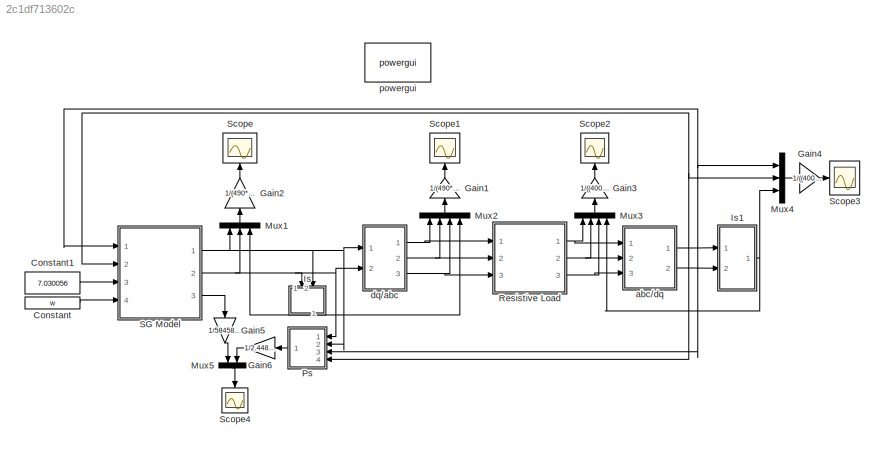
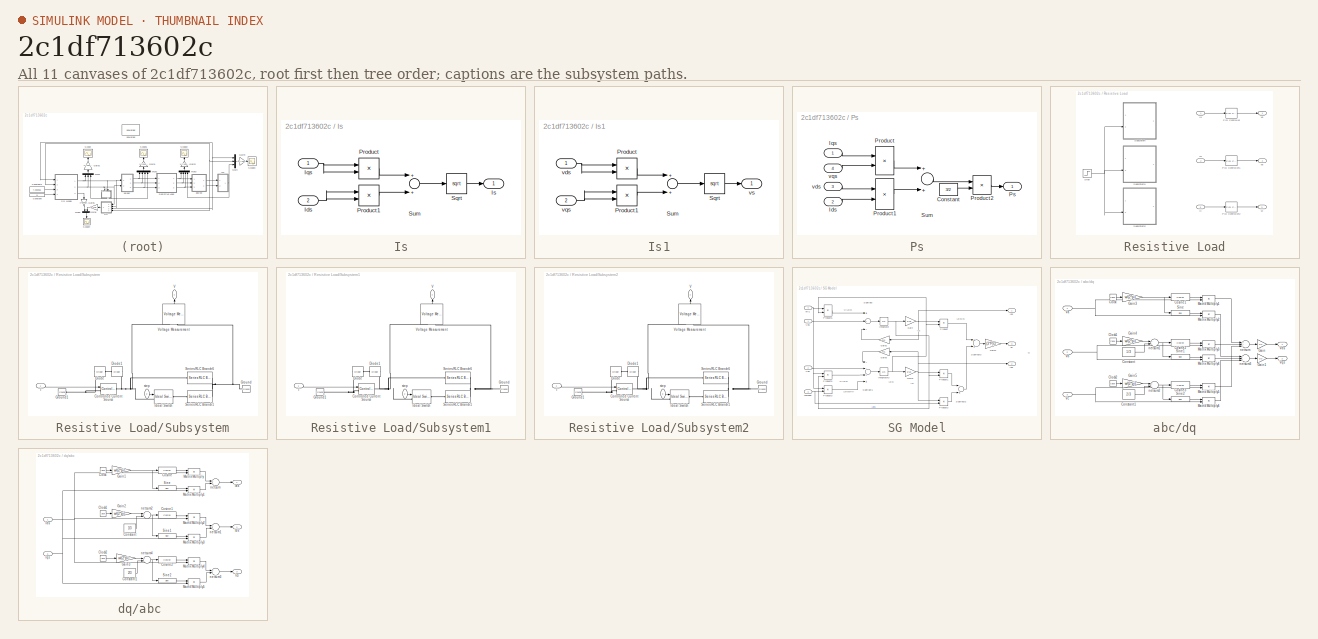
[diagram: thumbnail index - all 11 canvases of the model, root first then tree order]
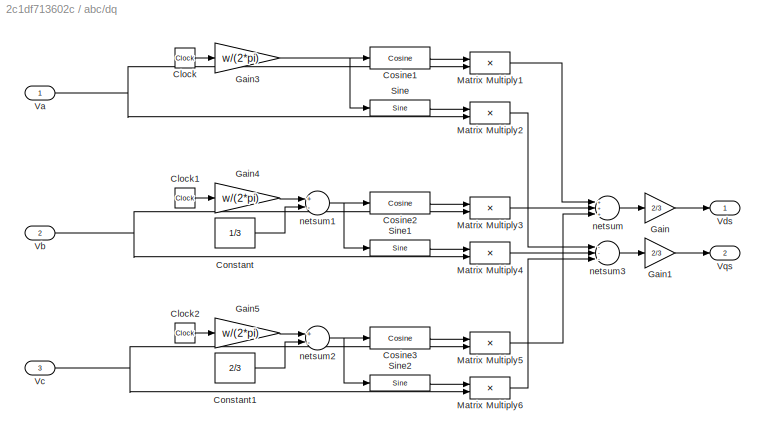
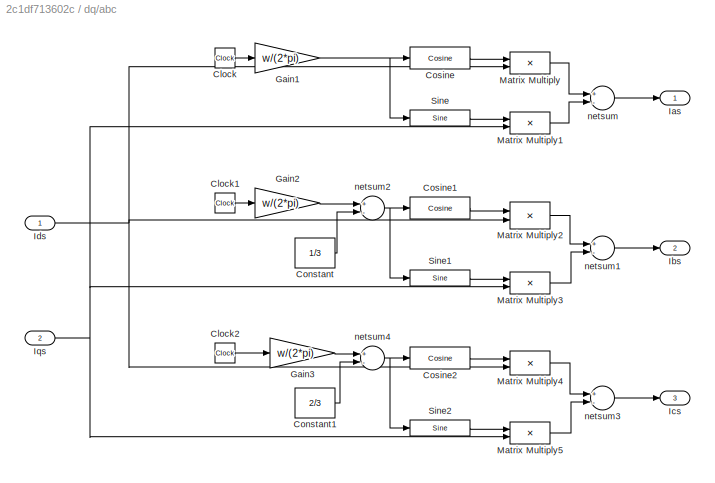
MODEL slx_2c1df713602c
KIND model
BLOCK [Constant] Constant
  Value = w
BLOCK [Constant] Constant1
  Value = 7.030056
BLOCK [Gain] Gain1
  Gain = 1/(490*sqrt(2))
  OutDataTypeStr = Inherit: Inherit via internal rule
  ParamDataTypeStr = Inherit: Inherit via internal rule
  SaturateOnIntegerOverflow = off
BLOCK [Gain] Gain2
  Gain = 1/(490*sqrt(2))
  OutDataTypeStr = Inherit: Inherit via internal rule
  ParamDataTypeStr = Inherit: Inherit via internal rule
  SaturateOnIntegerOverflow = off
BLOCK [Gain] Gain3
  Gain = 1/((4000/sqrt(3))*sqrt(2))
  OutDataTypeStr = Inherit: Inherit via internal rule
  ParamDataTypeStr = Inherit: Inherit via internal rule
  SaturateOnIntegerOverflow = off
BLOCK [Gain] Gain4
  Gain = 1/((4000/sqrt(3))*sqrt(2))
  OutDataTypeStr = Inherit: Inherit via internal rule
  ParamDataTypeStr = Inherit: Inherit via internal rule
  SaturateOnIntegerOverflow = off
BLOCK [Gain] Gain5
  Gain = 1/58458.5
  OutDataTypeStr = Inherit: Inherit via internal rule
  ParamDataTypeStr = Inherit: Inherit via internal rule
  SaturateOnIntegerOverflow = off
BLOCK [Gain] Gain6
  Gain = 1/2.4487e6
  OutDataTypeStr = Inherit: Inherit via internal rule
  ParamDataTypeStr = Inherit: Inherit via internal rule
  SaturateOnIntegerOverflow = off
BLOCK [SubSystem] Is
  FunctionWithSeparateData = off
  MaskHideContents = off
  MinAlgLoopOccurrences = off
  Opaque = off
  Ports = [2, 1]
  PropExecContextOutsideSubsystem = off
  RTWSystemCode = Auto
  RequestExecContextInheritance = off
BLOCK [Inport] Is/Ids
  IconDisplay = Port number
  Port = 2
BLOCK [Inport] Is/Iqs
  IconDisplay = Port number
BLOCK [Outport] Is/Is
  IconDisplay = Port number
BLOCK [Product] Is/Product
  InputSameDT = off
  OutDataTypeStr = Inherit: Inherit via internal rule
  Ports = [2, 1]
  RndMeth = Floor
  SaturateOnIntegerOverflow = off
BLOCK [Product] Is/Product1
  InputSameDT = off
  OutDataTypeStr = Inherit: Inherit via internal rule
  Ports = [2, 1]
  RndMeth = Floor
  SaturateOnIntegerOverflow = off
BLOCK [Sqrt] Is/Sqrt
BLOCK [Sum] Is/Sum
  InputSameDT = off
  OutDataTypeStr = Inherit: Inherit via internal rule
  Ports = [2, 1]
  SaturateOnIntegerOverflow = off
BLOCK [SubSystem] Is1
  FunctionWithSeparateData = off
  MaskHideContents = off
  MinAlgLoopOccurrences = off
  Opaque = off
  Ports = [2, 1]
  PropExecContextOutsideSubsystem = off
  RTWSystemCode = Auto
  RequestExecContextInheritance = off
BLOCK [Product] Is1/Product
  InputSameDT = off
  OutDataTypeStr = Inherit: Inherit via internal rule
  Ports = [2, 1]
  RndMeth = Floor
  SaturateOnIntegerOverflow = off
BLOCK [Product] Is1/Product1
  InputSameDT = off
  OutDataTypeStr = Inherit: Inherit via internal rule
  Ports = [2, 1]
  RndMeth = Floor
  SaturateOnIntegerOverflow = off
BLOCK [Sqrt] Is1/Sqrt
BLOCK [Sum] Is1/Sum
  InputSameDT = off
  OutDataTypeStr = Inherit: Inherit via internal rule
  Ports = [2, 1]
  SaturateOnIntegerOverflow = off
BLOCK [Inport] Is1/vds
  IconDisplay = Port number
BLOCK [Inport] Is1/vqs
  IconDisplay = Port number
  Port = 2
BLOCK [Outport] Is1/vs
  IconDisplay = Port number
BLOCK [Mux] Mux1
  DisplayOption = bar
  Inputs = 3
  Ports = [3, 1]
BLOCK [Mux] Mux2
  DisplayOption = bar
  Ports = [4, 1]
BLOCK [Mux] Mux3
  DisplayOption = bar
  Ports = [4, 1]
BLOCK [Mux] Mux4
  DisplayOption = bar
  Inputs = 3
  Ports = [3, 1]
BLOCK [Mux] Mux5
  DisplayOption = bar
  Inputs = 2
  Ports = [2, 1]
BLOCK [SubSystem] Ps
  FunctionWithSeparateData = off
  MaskHideContents = off
  MinAlgLoopOccurrences = off
  Opaque = off
  Ports = [4, 1]
  PropExecContextOutsideSubsystem = off
  RTWSystemCode = Auto
  RequestExecContextInheritance = off
BLOCK [Constant] Ps/Constant
  Value = 3/2
BLOCK [Inport] Ps/Ids
  IconDisplay = Port number
  Port = 2
BLOCK [Inport] Ps/Iqs
  IconDisplay = Port number
BLOCK [Product] Ps/Product
  InputSameDT = off
  OutDataTypeStr = Inherit: Inherit via internal rule
  Ports = [2, 1]
  RndMeth = Floor
  SaturateOnIntegerOverflow = off
BLOCK [Product] Ps/Product1
  InputSameDT = off
  OutDataTypeStr = Inherit: Inherit via internal rule
  Ports = [2, 1]
  RndMeth = Floor
  SaturateOnIntegerOverflow = off
BLOCK [Product] Ps/Product2
  InputSameDT = off
  OutDataTypeStr = Inherit: Inherit via internal rule
  Ports = [2, 1]
  RndMeth = Floor
  SaturateOnIntegerOverflow = off
BLOCK [Outport] Ps/Ps
  IconDisplay = Port number
BLOCK [Sum] Ps/Sum
  InputSameDT = off
  OutDataTypeStr = Inherit: Inherit via internal rule
  Ports = [2, 1]
  SaturateOnIntegerOverflow = off
BLOCK [Inport] Ps/vds
  IconDisplay = Port number
  Port = 3
BLOCK [Inport] Ps/vqs
  IconDisplay = Port number
  Port = 4
BLOCK [SubSystem] Resistive Load
  FunctionWithSeparateData = off
  MaskHideContents = off
  MinAlgLoopOccurrences = off
  Opaque = off
  Ports = [3, 3]
  PropExecContextOutsideSubsystem = off
  RTWSystemCode = Auto
  RequestExecContextInheritance = off
BLOCK [Inport] Resistive Load/Ia
  IconDisplay = Port number
BLOCK [Inport] Resistive Load/Ib
  IconDisplay = Port number
  Port = 2
BLOCK [Inport] Resistive Load/Ic
  IconDisplay = Port number
  Port = 3
BLOCK [Reference] Resistive Load/PID Controller  REF=simulink/Continuous/PID Controller
  AntiWindupMode = none
  Controller = PID
  D = LL
  DOutDataTypeStr = Inherit: Inherit via internal rule
  DOutMax = []
  DOutMin = []
  DParamDataTypeStr = Inherit: Inherit via internal rule
  DParamMax = []
  DParamMin = []
  ExternalReset = none
  FilterContinuousStateAttributes = ''
  FilterMethod = Forward Euler
  FilterOutDataTypeStr = Inherit: Inherit via internal rule
  FilterOutMax = []
  FilterOutMin = []
  FilterRTWStateStorageClass = Auto
  FilterStateMustResolveToSignalObject = off
  Form = Parallel
  I = 0
  IOutDataTypeStr = Inherit: Inherit via internal rule
  IOutMax = []
  IOutMin = []
  IParamDataTypeStr = Inherit: Inherit via internal rule
  IParamMax = []
  IParamMin = []
  IgnoreLimit = off
  InitialConditionForFilter = 0
  InitialConditionForIntegrator = 0
  InitialConditionSource = internal
  IntegratorContinuousStateAttributes = ''
  IntegratorMethod = Forward Euler
  IntegratorOutDataTypeStr = Inherit: Inherit via internal rule
  IntegratorOutMax = []
  IntegratorOutMin = []
  IntegratorRTWStateStorageClass = Auto
  IntegratorStateMustResolveToSignalObject = off
  Kb = 1
  KbOutDataTypeStr = Inherit: Inherit via internal rule
  KbOutMax = []
  KbOutMin = []
  KbParamDataTypeStr = Inherit: Inherit via internal rule
  KbParamMax = []
  KbParamMin = []
  Kt = 1
  KtOutDataTypeStr = Inherit: Inherit via internal rule
  KtOutMax = []
  KtOutMin = []
  KtParamDataTypeStr = Inherit: Inherit via internal rule
  KtParamMax = []
  KtParamMin = []
  LimitOutput = off
  LinearizeAsGain = on
  LockScale = off
  LowerSaturationLimit = -inf
  N = N
  NOutDataTypeStr = Inherit: Inherit via internal rule
  NOutMax = []
  NOutMin = []
  NParamDataTypeStr = Inherit: Inherit via internal rule
  NParamMax = []
  NParamMin = []
  P = RL
  POutDataTypeStr = Inherit: Inherit via internal rule
  POutMax = []
  POutMin = []
  PParamDataTypeStr = Inherit: Inherit via internal rule
  PParamMax = []
  PParamMin = []
  Ports = [1, 1]
  RndMeth = Floor
  SampleTime = 1
  SaturateOnIntegerOverflow = off
  SaturationOutDataTypeStr = Inherit: Same as input
  SaturationOutMax = []
  SaturationOutMin = []
  SourceBlock = simulink/Continuous/PID Controller
  SourceType = PID 1dof
  SumAccumDataTypeStr = Inherit: Inherit via internal rule
  SumDAccumDataTypeStr = Inherit: Inherit via internal rule
  SumDOutDataTypeStr = Inherit: Inherit via internal rule
  SumDOutMax = []
  SumDOutMin = []
  SumI1AccumDataTypeStr = Inherit: Inherit via internal rule
  SumI1OutDataTypeStr = Inherit: Inherit via internal rule
  SumI1OutMax = []
  SumI1OutMin = []
  SumI2AccumDataTypeStr = Inherit: Inherit via internal rule
  SumI2OutDataTypeStr = Inherit: Inherit via internal rule
  SumI2OutMax = []
  SumI2OutMin = []
  SumI3AccumDataTypeStr = Inherit: Inherit via internal rule
  SumI3OutDataTypeStr = Inherit: Inherit via internal rule
  SumI3OutMax = []
  SumI3OutMin = []
  SumOutDataTypeStr = Inherit: Inherit via internal rule
  SumOutMax = []
  SumOutMin = []
  TimeDomain = Continuous-time
  TrackingMode = off
  UpperSaturationLimit = inf
  ZeroCross = on
BLOCK [Reference] Resistive Load/PID Controller1  REF=simulink/Continuous/PID Controller
  AntiWindupMode = none
  Controller = PID
  D = LL
  DOutDataTypeStr = Inherit: Inherit via internal rule
  DOutMax = []
  DOutMin = []
  DParamDataTypeStr = Inherit: Inherit via internal rule
  DParamMax = []
  DParamMin = []
  ExternalReset = none
  FilterContinuousStateAttributes = ''
  FilterMethod = Forward Euler
  FilterOutDataTypeStr = Inherit: Inherit via internal rule
  FilterOutMax = []
  FilterOutMin = []
  FilterRTWStateStorageClass = Auto
  FilterStateMustResolveToSignalObject = off
  Form = Parallel
  I = 0
  IOutDataTypeStr = Inherit: Inherit via internal rule
  IOutMax = []
  IOutMin = []
  IParamDataTypeStr = Inherit: Inherit via internal rule
  IParamMax = []
  IParamMin = []
  IgnoreLimit = off
  InitialConditionForFilter = 0
  InitialConditionForIntegrator = 0
  InitialConditionSource = internal
  IntegratorContinuousStateAttributes = ''
  IntegratorMethod = Forward Euler
  IntegratorOutDataTypeStr = Inherit: Inherit via internal rule
  IntegratorOutMax = []
  IntegratorOutMin = []
  IntegratorRTWStateStorageClass = Auto
  IntegratorStateMustResolveToSignalObject = off
  Kb = 1
  KbOutDataTypeStr = Inherit: Inherit via internal rule
  KbOutMax = []
  KbOutMin = []
  KbParamDataTypeStr = Inherit: Inherit via internal rule
  KbParamMax = []
  KbParamMin = []
  Kt = 1
  KtOutDataTypeStr = Inherit: Inherit via internal rule
  KtOutMax = []
  KtOutMin = []
  KtParamDataTypeStr = Inherit: Inherit via internal rule
  KtParamMax = []
  KtParamMin = []
  LimitOutput = off
  LinearizeAsGain = on
  LockScale = off
  LowerSaturationLimit = -inf
  N = N
  NOutDataTypeStr = Inherit: Inherit via internal rule
  NOutMax = []
  NOutMin = []
  NParamDataTypeStr = Inherit: Inherit via internal rule
  NParamMax = []
  NParamMin = []
  P = RL
  POutDataTypeStr = Inherit: Inherit via internal rule
  POutMax = []
  POutMin = []
  PParamDataTypeStr = Inherit: Inherit via internal rule
  PParamMax = []
  PParamMin = []
  Ports = [1, 1]
  RndMeth = Floor
  SampleTime = 1
  SaturateOnIntegerOverflow = off
  SaturationOutDataTypeStr = Inherit: Same as input
  SaturationOutMax = []
  SaturationOutMin = []
  SourceBlock = simulink/Continuous/PID Controller
  SourceType = PID 1dof
  SumAccumDataTypeStr = Inherit: Inherit via internal rule
  SumDAccumDataTypeStr = Inherit: Inherit via internal rule
  SumDOutDataTypeStr = Inherit: Inherit via internal rule
  SumDOutMax = []
  SumDOutMin = []
  SumI1AccumDataTypeStr = Inherit: Inherit via internal rule
  SumI1OutDataTypeStr = Inherit: Inherit via internal rule
  SumI1OutMax = []
  SumI1OutMin = []
  SumI2AccumDataTypeStr = Inherit: Inherit via internal rule
  SumI2OutDataTypeStr = Inherit: Inherit via internal rule
  SumI2OutMax = []
  SumI2OutMin = []
  SumI3AccumDataTypeStr = Inherit: Inherit via internal rule
  SumI3OutDataTypeStr = Inherit: Inherit via internal rule
  SumI3OutMax = []
  SumI3OutMin = []
  SumOutDataTypeStr = Inherit: Inherit via internal rule
  SumOutMax = []
  SumOutMin = []
  TimeDomain = Continuous-time
  TrackingMode = off
  UpperSaturationLimit = inf
  ZeroCross = on
BLOCK [Reference] Resistive Load/PID Controller2  REF=simulink/Continuous/PID Controller
  AntiWindupMode = none
  Controller = PID
  D = LL
  DOutDataTypeStr = Inherit: Inherit via internal rule
  DOutMax = []
  DOutMin = []
  DParamDataTypeStr = Inherit: Inherit via internal rule
  DParamMax = []
  DParamMin = []
  ExternalReset = none
  FilterContinuousStateAttributes = ''
  FilterMethod = Forward Euler
  FilterOutDataTypeStr = Inherit: Inherit via internal rule
  FilterOutMax = []
  FilterOutMin = []
  FilterRTWStateStorageClass = Auto
  FilterStateMustResolveToSignalObject = off
  Form = Parallel
  I = 0
  IOutDataTypeStr = Inherit: Inherit via internal rule
  IOutMax = []
  IOutMin = []
  IParamDataTypeStr = Inherit: Inherit via internal rule
  IParamMax = []
  IParamMin = []
  IgnoreLimit = off
  InitialConditionForFilter = 0
  InitialConditionForIntegrator = 0
  InitialConditionSource = internal
  IntegratorContinuousStateAttributes = ''
  IntegratorMethod = Forward Euler
  IntegratorOutDataTypeStr = Inherit: Inherit via internal rule
  IntegratorOutMax = []
  IntegratorOutMin = []
  IntegratorRTWStateStorageClass = Auto
  IntegratorStateMustResolveToSignalObject = off
  Kb = 1
  KbOutDataTypeStr = Inherit: Inherit via internal rule
  KbOutMax = []
  KbOutMin = []
  KbParamDataTypeStr = Inherit: Inherit via internal rule
  KbParamMax = []
  KbParamMin = []
  Kt = 1
  KtOutDataTypeStr = Inherit: Inherit via internal rule
  KtOutMax = []
  KtOutMin = []
  KtParamDataTypeStr = Inherit: Inherit via internal rule
  KtParamMax = []
  KtParamMin = []
  LimitOutput = off
  LinearizeAsGain = on
  LockScale = off
  LowerSaturationLimit = -inf
  N = N
  NOutDataTypeStr = Inherit: Inherit via internal rule
  NOutMax = []
  NOutMin = []
  NParamDataTypeStr = Inherit: Inherit via internal rule
  NParamMax = []
  NParamMin = []
  P = RL
  POutDataTypeStr = Inherit: Inherit via internal rule
  POutMax = []
  POutMin = []
  PParamDataTypeStr = Inherit: Inherit via internal rule
  PParamMax = []
  PParamMin = []
  Ports = [1, 1]
  RndMeth = Floor
  SampleTime = 1
  SaturateOnIntegerOverflow = off
  SaturationOutDataTypeStr = Inherit: Same as input
  SaturationOutMax = []
  SaturationOutMin = []
  SourceBlock = simulink/Continuous/PID Controller
  SourceType = PID 1dof
  SumAccumDataTypeStr = Inherit: Inherit via internal rule
  SumDAccumDataTypeStr = Inherit: Inherit via internal rule
  SumDOutDataTypeStr = Inherit: Inherit via internal rule
  SumDOutMax = []
  SumDOutMin = []
  SumI1AccumDataTypeStr = Inherit: Inherit via internal rule
  SumI1OutDataTypeStr = Inherit: Inherit via internal rule
  SumI1OutMax = []
  SumI1OutMin = []
  SumI2AccumDataTypeStr = Inherit: Inherit via internal rule
  SumI2OutDataTypeStr = Inherit: Inherit via internal rule
  SumI2OutMax = []
  SumI2OutMin = []
  SumI3AccumDataTypeStr = Inherit: Inherit via internal rule
  SumI3OutDataTypeStr = Inherit: Inherit via internal rule
  SumI3OutMax = []
  SumI3OutMin = []
  SumOutDataTypeStr = Inherit: Inherit via internal rule
  SumOutMax = []
  SumOutMin = []
  TimeDomain = Continuous-time
  TrackingMode = off
  UpperSaturationLimit = inf
  ZeroCross = on
BLOCK [Step] Resistive Load/Step
  SampleTime = 0
  Time = 0.05
BLOCK [SubSystem] Resistive Load/Subsystem
  FunctionWithSeparateData = off
  MaskHideContents = off
  MinAlgLoopOccurrences = off
  Opaque = off
  Ports = [2, 1]
  PropExecContextOutsideSubsystem = off
  RTWSystemCode = Auto
  RequestExecContextInheritance = off
BLOCK [Reference] Resistive Load/Subsystem/Controlled Current Source  REF=powerlib/Electrical
Sources/Controlled Current Source
  Amplitude = is
  Frequency = f
  Initialize = off
  Measurements = None
  Phase = 90
  Ports = [1, 0, 0, 0, 0, 1, 1]
  SourceBlock = powerlib/Electrical\nSources/Controlled Current Source
  SourceType = Controlled Current Source
  Source_Type = AC
BLOCK [Reference] Resistive Load/Subsystem/Diode  REF=powerlib/Power
Electronics/Diode
  Cs = inf
  IC = 0
  Lon = 0
  Measurements = off
  Ports = [0, 0, 0, 0, 0, 1, 1]
  Ron = 0.001
  Rs = Rsnubber
  SourceBlock = powerlib/Power\nElectronics/Diode
  SourceType = Diode
  UseSnubber = off
  Vf = 0.8
BLOCK [Reference] Resistive Load/Subsystem/Diode1  REF=powerlib/Power
Electronics/Diode
  Cs = inf
  IC = 0
  Lon = 0
  Measurements = off
  Ports = [0, 0, 0, 0, 0, 1, 1]
  Ron = 0.001
  Rs = Rsnubber
  SourceBlock = powerlib/Power\nElectronics/Diode
  SourceType = Diode
  UseSnubber = off
  Vf = 0.8
BLOCK [Reference] Resistive Load/Subsystem/Ground  REF=powerlib/Elements/Ground
  LConnTagsString = a
  Ports = [0, 0, 0, 0, 0, 1]
  SourceBlock = powerlib/Elements/Ground
  SourceType = Ground
BLOCK [Reference] Resistive Load/Subsystem/Ground1  REF=powerlib/Elements/Ground
  LConnTagsString = a
  Ports = [0, 0, 0, 0, 0, 1]
  SourceBlock = powerlib/Elements/Ground
  SourceType = Ground
BLOCK [Inport] Resistive Load/Subsystem/I
  IconDisplay = Port number
BLOCK [Reference] Resistive Load/Subsystem/Ideal Switch  REF=powerlib/Power
Electronics/Ideal Switch
  Cs = inf
  IC = 0
  Lon = 0
  Measurements = off
  Ports = [1, 0, 0, 0, 0, 1, 1]
  Ron = 0.001
  Rs = inf
  SourceBlock = powerlib/Power\nElectronics/Ideal Switch
  SourceType = Ideal Switch
BLOCK [Reference] Resistive Load/Subsystem/Series RLC Branch1  REF=powerlib/Elements/Series RLC Branch
  BranchType = RL
  Capacitance = 0
  Inductance = LL
  InitialCurrent = 0
  InitialVoltage = 0
  LConnTagsString = __new0
  Measurements = None
  Ports = [0, 0, 0, 0, 0, 1, 1]
  RConnTagsString = __new0
  Resistance = RL
  SetiL0 = off
  Setx0 = off
  SourceBlock = powerlib/Elements/Series RLC Branch
  SourceType = Series RLC Branch
BLOCK [Reference] Resistive Load/Subsystem/Series RLC Branch6  REF=powerlib/Elements/Series RLC Branch
  BranchType = RL
  Capacitance = 0
  Inductance = LL
  InitialCurrent = is
  InitialVoltage = 0
  LConnTagsString = __new0
  Measurements = None
  Ports = [0, 0, 0, 0, 0, 1, 1]
  RConnTagsString = __new0
  Resistance = RL
  SetiL0 = on
  Setx0 = off
  SourceBlock = powerlib/Elements/Series RLC Branch
  SourceType = Series RLC Branch
BLOCK [Outport] Resistive Load/Subsystem/V
  IconDisplay = Port number
BLOCK [Reference] Resistive Load/Subsystem/Voltage Measurement  REF=powerlib/Measurements/Voltage Measurement
  OutputType = Complex
  PSBequivalent = 0
  PhasorSimulation = off
  Ports = [0, 1, 0, 0, 0, 2]
  SourceBlock = powerlib/Measurements/Voltage Measurement
  SourceType = Voltage Measurement
  UserDataPersistent = on
BLOCK [Inport] Resistive Load/Subsystem/step
  IconDisplay = Port number
  Port = 2
BLOCK [SubSystem] Resistive Load/Subsystem1
  FunctionWithSeparateData = off
  MaskHideContents = off
  MinAlgLoopOccurrences = off
  Opaque = off
  Ports = [2, 1]
  PropExecContextOutsideSubsystem = off
  RTWSystemCode = Auto
  RequestExecContextInheritance = off
BLOCK [Reference] Resistive Load/Subsystem1/Controlled Current Source  REF=powerlib/Electrical
Sources/Controlled Current Source
  Amplitude = is
  Frequency = f
  Initialize = off
  Measurements = None
  Phase = 90
  Ports = [1, 0, 0, 0, 0, 1, 1]
  SourceBlock = powerlib/Electrical\nSources/Controlled Current Source
  SourceType = Controlled Current Source
  Source_Type = AC
BLOCK [Reference] Resistive Load/Subsystem1/Diode  REF=powerlib/Power
Electronics/Diode
  Cs = inf
  IC = 0
  Lon = 0
  Measurements = off
  Ports = [0, 0, 0, 0, 0, 1, 1]
  Ron = 0.001
  Rs = Rsnubber
  SourceBlock = powerlib/Power\nElectronics/Diode
  SourceType = Diode
  UseSnubber = off
  Vf = 0.8
BLOCK [Reference] Resistive Load/Subsystem1/Diode1  REF=powerlib/Power
Electronics/Diode
  Cs = inf
  IC = 0
  Lon = 0
  Measurements = off
  Ports = [0, 0, 0, 0, 0, 1, 1]
  Ron = 0.001
  Rs = Rsnubber
  SourceBlock = powerlib/Power\nElectronics/Diode
  SourceType = Diode
  UseSnubber = off
  Vf = 0.8
BLOCK [Reference] Resistive Load/Subsystem1/Ground  REF=powerlib/Elements/Ground
  LConnTagsString = a
  Ports = [0, 0, 0, 0, 0, 1]
  SourceBlock = powerlib/Elements/Ground
  SourceType = Ground
BLOCK [Reference] Resistive Load/Subsystem1/Ground1  REF=powerlib/Elements/Ground
  LConnTagsString = a
  Ports = [0, 0, 0, 0, 0, 1]
  SourceBlock = powerlib/Elements/Ground
  SourceType = Ground
BLOCK [Inport] Resistive Load/Subsystem1/I
  IconDisplay = Port number
BLOCK [Reference] Resistive Load/Subsystem1/Ideal Switch  REF=powerlib/Power
Electronics/Ideal Switch
  Cs = inf
  IC = 0
  Lon = 0
  Measurements = off
  Ports = [1, 0, 0, 0, 0, 1, 1]
  Ron = 0.001
  Rs = inf
  SourceBlock = powerlib/Power\nElectronics/Ideal Switch
  SourceType = Ideal Switch
BLOCK [Reference] Resistive Load/Subsystem1/Series RLC Branch1  REF=powerlib/Elements/Series RLC Branch
  BranchType = RL
  Capacitance = 0
  Inductance = LL
  InitialCurrent = 0
  InitialVoltage = 0
  LConnTagsString = __new0
  Measurements = None
  Ports = [0, 0, 0, 0, 0, 1, 1]
  RConnTagsString = __new0
  Resistance = RL
  SetiL0 = off
  Setx0 = off
  SourceBlock = powerlib/Elements/Series RLC Branch
  SourceType = Series RLC Branch
BLOCK [Reference] Resistive Load/Subsystem1/Series RLC Branch6  REF=powerlib/Elements/Series RLC Branch
  BranchType = RL
  Capacitance = 0
  Inductance = LL
  InitialCurrent = is
  InitialVoltage = 0
  LConnTagsString = __new0
  Measurements = None
  Ports = [0, 0, 0, 0, 0, 1, 1]
  RConnTagsString = __new0
  Resistance = RL
  SetiL0 = on
  Setx0 = off
  SourceBlock = powerlib/Elements/Series RLC Branch
  SourceType = Series RLC Branch
BLOCK [Outport] Resistive Load/Subsystem1/V
  IconDisplay = Port number
BLOCK [Reference] Resistive Load/Subsystem1/Voltage Measurement  REF=powerlib/Measurements/Voltage Measurement
  OutputType = Complex
  PSBequivalent = 0
  PhasorSimulation = off
  Ports = [0, 1, 0, 0, 0, 2]
  SourceBlock = powerlib/Measurements/Voltage Measurement
  SourceType = Voltage Measurement
  UserDataPersistent = on
BLOCK [Inport] Resistive Load/Subsystem1/step
  IconDisplay = Port number
  Port = 2
BLOCK [SubSystem] Resistive Load/Subsystem2
  FunctionWithSeparateData = off
  MaskHideContents = off
  MinAlgLoopOccurrences = off
  Opaque = off
  Ports = [2, 1]
  PropExecContextOutsideSubsystem = off
  RTWSystemCode = Auto
  RequestExecContextInheritance = off
BLOCK [Reference] Resistive Load/Subsystem2/Controlled Current Source  REF=powerlib/Electrical
Sources/Controlled Current Source
  Amplitude = is
  Frequency = f
  Initialize = off
  Measurements = None
  Phase = 90
  Ports = [1, 0, 0, 0, 0, 1, 1]
  SourceBlock = powerlib/Electrical\nSources/Controlled Current Source
  SourceType = Controlled Current Source
  Source_Type = AC
BLOCK [Reference] Resistive Load/Subsystem2/Diode  REF=powerlib/Power
Electronics/Diode
  Cs = inf
  IC = 0
  Lon = 0
  Measurements = off
  Ports = [0, 0, 0, 0, 0, 1, 1]
  Ron = 0.001
  Rs = Rsnubber
  SourceBlock = powerlib/Power\nElectronics/Diode
  SourceType = Diode
  UseSnubber = off
  Vf = 0.8
BLOCK [Reference] Resistive Load/Subsystem2/Diode1  REF=powerlib/Power
Electronics/Diode
  Cs = inf
  IC = 0
  Lon = 0
  Measurements = off
  Ports = [0, 0, 0, 0, 0, 1, 1]
  Ron = 0.001
  Rs = Rsnubber
  SourceBlock = powerlib/Power\nElectronics/Diode
  SourceType = Diode
  UseSnubber = off
  Vf = 0.8
BLOCK [Reference] Resistive Load/Subsystem2/Ground  REF=powerlib/Elements/Ground
  LConnTagsString = a
  Ports = [0, 0, 0, 0, 0, 1]
  SourceBlock = powerlib/Elements/Ground
  SourceType = Ground
BLOCK [Reference] Resistive Load/Subsystem2/Ground1  REF=powerlib/Elements/Ground
  LConnTagsString = a
  Ports = [0, 0, 0, 0, 0, 1]
  SourceBlock = powerlib/Elements/Ground
  SourceType = Ground
BLOCK [Inport] Resistive Load/Subsystem2/I
  IconDisplay = Port number
BLOCK [Reference] Resistive Load/Subsystem2/Ideal Switch  REF=powerlib/Power
Electronics/Ideal Switch
  Cs = inf
  IC = 0
  Lon = 0
  Measurements = off
  Ports = [1, 0, 0, 0, 0, 1, 1]
  Ron = 0.001
  Rs = inf
  SourceBlock = powerlib/Power\nElectronics/Ideal Switch
  SourceType = Ideal Switch
BLOCK [Reference] Resistive Load/Subsystem2/Series RLC Branch1  REF=powerlib/Elements/Series RLC Branch
  BranchType = RL
  Capacitance = 0
  Inductance = LL
  InitialCurrent = 0
  InitialVoltage = 0
  LConnTagsString = __new0
  Measurements = None
  Ports = [0, 0, 0, 0, 0, 1, 1]
  RConnTagsString = __new0
  Resistance = RL
  SetiL0 = off
  Setx0 = off
  SourceBlock = powerlib/Elements/Series RLC Branch
  SourceType = Series RLC Branch
BLOCK [Reference] Resistive Load/Subsystem2/Series RLC Branch6  REF=powerlib/Elements/Series RLC Branch
  BranchType = RL
  Capacitance = 0
  Inductance = LL
  InitialCurrent = is
  InitialVoltage = 0
  LConnTagsString = __new0
  Measurements = None
  Ports = [0, 0, 0, 0, 0, 1, 1]
  RConnTagsString = __new0
  Resistance = RL
  SetiL0 = on
  Setx0 = off
  SourceBlock = powerlib/Elements/Series RLC Branch
  SourceType = Series RLC Branch
BLOCK [Outport] Resistive Load/Subsystem2/V
  IconDisplay = Port number
BLOCK [Reference] Resistive Load/Subsystem2/Voltage Measurement  REF=powerlib/Measurements/Voltage Measurement
  OutputType = Complex
  PSBequivalent = 0
  PhasorSimulation = off
  Ports = [0, 1, 0, 0, 0, 2]
  SourceBlock = powerlib/Measurements/Voltage Measurement
  SourceType = Voltage Measurement
  UserDataPersistent = on
BLOCK [Inport] Resistive Load/Subsystem2/step
  IconDisplay = Port number
  Port = 2
BLOCK [Outport] Resistive Load/va
  IconDisplay = Port number
BLOCK [Outport] Resistive Load/vb
  IconDisplay = Port number
  Port = 2
BLOCK [Outport] Resistive Load/vc
  IconDisplay = Port number
  Port = 3
BLOCK [SubSystem] SG Model
  FunctionWithSeparateData = off
  MaskHideContents = off
  MinAlgLoopOccurrences = off
  Opaque = off
  Ports = [4, 3]
  PropExecContextOutsideSubsystem = off
  RTWSystemCode = Auto
  RequestExecContextInheritance = off
BLOCK [Gain] SG Model/Gain
  Gain = 1/Ld
  OutDataTypeStr = Inherit: Inherit via internal rule
  ParamDataTypeStr = Inherit: Inherit via internal rule
  SaturateOnIntegerOverflow = off
BLOCK [Gain] SG Model/Gain1
  Gain = 1/Lq
  OutDataTypeStr = Inherit: Inherit via internal rule
  ParamDataTypeStr = Inherit: Inherit via internal rule
  SaturateOnIntegerOverflow = off
BLOCK [Gain] SG Model/Gain2
  Gain = Rs
  OutDataTypeStr = Inherit: Inherit via internal rule
  ParamDataTypeStr = Inherit: Inherit via internal rule
  SaturateOnIntegerOverflow = off
BLOCK [Gain] SG Model/Gain3
  Gain = Rs
  OutDataTypeStr = Inherit: Inherit via internal rule
  ParamDataTypeStr = Inherit: Inherit via internal rule
  SaturateOnIntegerOverflow = off
BLOCK [Gain] SG Model/Gain4
  Gain = (3*P)/2
  OutDataTypeStr = Inherit: Inherit via internal rule
  ParamDataTypeStr = Inherit: Inherit via internal rule
  SaturateOnIntegerOverflow = off
BLOCK [Outport] SG Model/Ids
  IconDisplay = Port number
BLOCK [Integrator] SG Model/Integrator
  InitialCondition = ids*Ld
  Ports = [1, 1]
BLOCK [Integrator] SG Model/Integrator3
  InitialCondition = iqs*Lq
  Ports = [1, 1]
BLOCK [Inport] SG Model/Lambda
  IconDisplay = Port number
  Port = 3
BLOCK [Product] SG Model/Product
  InputSameDT = off
  OutDataTypeStr = Inherit: Inherit via internal rule
  Ports = [2, 1]
  RndMeth = Floor
  SaturateOnIntegerOverflow = off
BLOCK [Product] SG Model/Product1
  InputSameDT = off
  OutDataTypeStr = Inherit: Inherit via internal rule
  Ports = [2, 1]
  RndMeth = Floor
  SaturateOnIntegerOverflow = off
BLOCK [Product] SG Model/Product2
  InputSameDT = off
  OutDataTypeStr = Inherit: Inherit via internal rule
  Ports = [2, 1]
  RndMeth = Floor
  SaturateOnIntegerOverflow = off
BLOCK [Product] SG Model/Product3
  InputSameDT = off
  OutDataTypeStr = Inherit: Inherit via internal rule
  Ports = [2, 1]
  RndMeth = Floor
  SaturateOnIntegerOverflow = off
BLOCK [Product] SG Model/Product5
  InputSameDT = off
  OutDataTypeStr = Inherit: Inherit via internal rule
  Ports = [2, 1]
  RndMeth = Floor
  SaturateOnIntegerOverflow = off
BLOCK [Product] SG Model/Product6
  InputSameDT = off
  OutDataTypeStr = Inherit: Inherit via internal rule
  Ports = [2, 1]
  RndMeth = Floor
  SaturateOnIntegerOverflow = off
BLOCK [Sum] SG Model/Subtract
  InputSameDT = off
  Inputs = +--
  OutDataTypeStr = Inherit: Inherit via internal rule
  Ports = [3, 1]
  SaturateOnIntegerOverflow = off
BLOCK [Sum] SG Model/Subtract1
  InputSameDT = off
  Inputs = ---+
  OutDataTypeStr = Inherit: Inherit via internal rule
  Ports = [4, 1]
  SaturateOnIntegerOverflow = off
BLOCK [Sum] SG Model/Subtract2
  InputSameDT = off
  Inputs = -+
  OutDataTypeStr = Inherit: Inherit via internal rule
  Ports = [2, 1]
  SaturateOnIntegerOverflow = off
BLOCK [Sum] SG Model/Subtract3
  InputSameDT = off
  OutDataTypeStr = Inherit: Inherit via internal rule
  Ports = [2, 1]
  SaturateOnIntegerOverflow = off
BLOCK [Outport] SG Model/Te
  IconDisplay = Port number
  Port = 3
BLOCK [Inport] SG Model/Vds
  IconDisplay = Port number
BLOCK [Inport] SG Model/Vqs
  IconDisplay = Port number
  Port = 2
BLOCK [Outport] SG Model/iqs
  IconDisplay = Port number
  Port = 2
BLOCK [Inport] SG Model/wr1
  IconDisplay = Port number
  Port = 4
BLOCK [Scope] Scope
  Floating = off
  LimitDataPoints = off
  NumInputPorts = 1
  Ports = [1]
  ShowLegends = off
  YMax = 1
  YMin = 0
BLOCK [Scope] Scope1
  Floating = off
  LimitDataPoints = off
  NumInputPorts = 1
  Ports = [1]
  ShowLegends = off
  YMax = 0.8
  YMin = -0.8
  ZoomMode = xonly
BLOCK [Scope] Scope2
  Floating = off
  LimitDataPoints = off
  NumInputPorts = 1
  Ports = [1]
  ShowLegends = off
  YMax = 800
  YMin = -800
  ZoomMode = xonly
BLOCK [Scope] Scope3
  Floating = off
  LimitDataPoints = off
  NumInputPorts = 1
  Ports = [1]
  ShowLegends = off
  YMax = 190
  YMin = 0
BLOCK [Scope] Scope4
  Floating = off
  LimitDataPoints = off
  NumInputPorts = 1
  Ports = [1]
  ShowLegends = off
  YMax = 20
  YMin = -20
BLOCK [SubSystem] abc//dq
  FunctionWithSeparateData = off
  MaskHideContents = off
  MinAlgLoopOccurrences = off
  Opaque = off
  Ports = [3, 2]
  PropExecContextOutsideSubsystem = off
  RTWSystemCode = Auto
  RequestExecContextInheritance = off
BLOCK [Clock] abc//dq/Clock
BLOCK [Clock] abc//dq/Clock1
BLOCK [Clock] abc//dq/Clock2
BLOCK [Constant] abc//dq/Constant
  Value = 1/3
BLOCK [Constant] abc//dq/Constant1
  Value = 2/3
BLOCK [Reference] abc//dq/Cosine1  REF=simulink/Lookup
Tables/Cosine
  Formula = cos(2*pi*u)
  NumDataPoints = (2^5)+1
  OutputWordLength = 16
  Ports = [1, 1]
  SourceBlock = simulink/Lookup\nTables/Cosine
  SourceType = Sine and Cosine
BLOCK [Reference] abc//dq/Cosine2  REF=simulink/Lookup
Tables/Cosine
  Formula = cos(2*pi*u)
  NumDataPoints = (2^5)+1
  OutputWordLength = 16
  Ports = [1, 1]
  SourceBlock = simulink/Lookup\nTables/Cosine
  SourceType = Sine and Cosine
BLOCK [Reference] abc//dq/Cosine3  REF=simulink/Lookup
Tables/Cosine
  Formula = cos(2*pi*u)
  NumDataPoints = (2^5)+1
  OutputWordLength = 16
  Ports = [1, 1]
  SourceBlock = simulink/Lookup\nTables/Cosine
  SourceType = Sine and Cosine
BLOCK [Gain] abc//dq/Gain
  Gain = 2/3
  OutDataTypeStr = Inherit: Inherit via internal rule
  ParamDataTypeStr = Inherit: Inherit via internal rule
  SaturateOnIntegerOverflow = off
BLOCK [Gain] abc//dq/Gain1
  Gain = 2/3
  OutDataTypeStr = Inherit: Inherit via internal rule
  ParamDataTypeStr = Inherit: Inherit via internal rule
  SaturateOnIntegerOverflow = off
BLOCK [Gain] abc//dq/Gain3
  Gain = w/(2*pi)
  OutDataTypeStr = Inherit: Inherit via internal rule
  ParamDataTypeStr = Inherit: Inherit via internal rule
  SaturateOnIntegerOverflow = off
BLOCK [Gain] abc//dq/Gain4
  Gain = w/(2*pi)
  OutDataTypeStr = Inherit: Inherit via internal rule
  ParamDataTypeStr = Inherit: Inherit via internal rule
  SaturateOnIntegerOverflow = off
BLOCK [Gain] abc//dq/Gain5
  Gain = w/(2*pi)
  OutDataTypeStr = Inherit: Inherit via internal rule
  ParamDataTypeStr = Inherit: Inherit via internal rule
  SaturateOnIntegerOverflow = off
BLOCK [Product] abc//dq/Matrix Multiply1
  InputSameDT = off
  OutDataTypeStr = Inherit: Inherit via internal rule
  Ports = [2, 1]
  RndMeth = Floor
  SaturateOnIntegerOverflow = off
BLOCK [Product] abc//dq/Matrix Multiply2
  InputSameDT = off
  OutDataTypeStr = Inherit: Inherit via internal rule
  Ports = [2, 1]
  RndMeth = Floor
  SaturateOnIntegerOverflow = off
BLOCK [Product] abc//dq/Matrix Multiply3
  InputSameDT = off
  OutDataTypeStr = Inherit: Inherit via internal rule
  Ports = [2, 1]
  RndMeth = Floor
  SaturateOnIntegerOverflow = off
BLOCK [Product] abc//dq/Matrix Multiply4
  InputSameDT = off
  OutDataTypeStr = Inherit: Inherit via internal rule
  Ports = [2, 1]
  RndMeth = Floor
  SaturateOnIntegerOverflow = off
BLOCK [Product] abc//dq/Matrix Multiply5
  InputSameDT = off
  OutDataTypeStr = Inherit: Inherit via internal rule
  Ports = [2, 1]
  RndMeth = Floor
  SaturateOnIntegerOverflow = off
BLOCK [Product] abc//dq/Matrix Multiply6
  InputSameDT = off
  OutDataTypeStr = Inherit: Inherit via internal rule
  Ports = [2, 1]
  RndMeth = Floor
  SaturateOnIntegerOverflow = off
BLOCK [Reference] abc//dq/Sine  REF=simulink/Lookup
Tables/Sine
  Formula = sin(2*pi*u)
  NumDataPoints = (2^5)+1
  OutputWordLength = 16
  Ports = [1, 1]
  SourceBlock = simulink/Lookup\nTables/Sine
  SourceType = Sine and Cosine
BLOCK [Reference] abc//dq/Sine1  REF=simulink/Lookup
Tables/Sine
  Formula = sin(2*pi*u)
  NumDataPoints = (2^5)+1
  OutputWordLength = 16
  Ports = [1, 1]
  SourceBlock = simulink/Lookup\nTables/Sine
  SourceType = Sine and Cosine
BLOCK [Reference] abc//dq/Sine2  REF=simulink/Lookup
Tables/Sine
  Formula = sin(2*pi*u)
  NumDataPoints = (2^5)+1
  OutputWordLength = 16
  Ports = [1, 1]
  SourceBlock = simulink/Lookup\nTables/Sine
  SourceType = Sine and Cosine
BLOCK [Inport] abc//dq/Va
  IconDisplay = Port number
BLOCK [Inport] abc//dq/Vb
  IconDisplay = Port number
  Port = 2
BLOCK [Inport] abc//dq/Vc
  IconDisplay = Port number
  Port = 3
BLOCK [Outport] abc//dq/Vds
  IconDisplay = Port number
BLOCK [Outport] abc//dq/Vqs
  IconDisplay = Port number
  Port = 2
BLOCK [Sum] abc//dq/netsum
  Inputs = +++
  Ports = [3, 1]
BLOCK [Sum] abc//dq/netsum1
  Inputs = +-
  Ports = [2, 1]
BLOCK [Sum] abc//dq/netsum2
  Inputs = +-
  Ports = [2, 1]
BLOCK [Sum] abc//dq/netsum3
  Inputs = ---
  Ports = [3, 1]
BLOCK [SubSystem] dq//abc 
  FunctionWithSeparateData = off
  MaskHideContents = off
  MinAlgLoopOccurrences = off
  Opaque = off
  Ports = [2, 3]
  PropExecContextOutsideSubsystem = off
  RTWSystemCode = Auto
  RequestExecContextInheritance = off
BLOCK [Clock] dq//abc /Clock
BLOCK [Clock] dq//abc /Clock1
BLOCK [Clock] dq//abc /Clock2
BLOCK [Constant] dq//abc /Constant
  Value = 1/3
BLOCK [Constant] dq//abc /Constant1
  Value = 2/3
BLOCK [Reference] dq//abc /Cosine  REF=simulink/Lookup
Tables/Cosine
  Formula = cos(2*pi*u)
  NumDataPoints = (2^5)+1
  OutputWordLength = 16
  Ports = [1, 1]
  SourceBlock = simulink/Lookup\nTables/Cosine
  SourceType = Sine and Cosine
BLOCK [Reference] dq//abc /Cosine1  REF=simulink/Lookup
Tables/Cosine
  Formula = cos(2*pi*u)
  NumDataPoints = (2^5)+1
  OutputWordLength = 16
  Ports = [1, 1]
  SourceBlock = simulink/Lookup\nTables/Cosine
  SourceType = Sine and Cosine
BLOCK [Reference] dq//abc /Cosine2  REF=simulink/Lookup
Tables/Cosine
  Formula = cos(2*pi*u)
  NumDataPoints = (2^5)+1
  OutputWordLength = 16
  Ports = [1, 1]
  SourceBlock = simulink/Lookup\nTables/Cosine
  SourceType = Sine and Cosine
BLOCK [Gain] dq//abc /Gain1
  Gain = w/(2*pi)
  OutDataTypeStr = Inherit: Inherit via internal rule
  ParamDataTypeStr = Inherit: Inherit via internal rule
  SaturateOnIntegerOverflow = off
BLOCK [Gain] dq//abc /Gain2
  Gain = w/(2*pi)
  OutDataTypeStr = Inherit: Inherit via internal rule
  ParamDataTypeStr = Inherit: Inherit via internal rule
  SaturateOnIntegerOverflow = off
BLOCK [Gain] dq//abc /Gain3
  Gain = w/(2*pi)
  OutDataTypeStr = Inherit: Inherit via internal rule
  ParamDataTypeStr = Inherit: Inherit via internal rule
  SaturateOnIntegerOverflow = off
BLOCK [Outport] dq//abc /Ias
  IconDisplay = Port number
BLOCK [Outport] dq//abc /Ibs
  IconDisplay = Port number
  Port = 2
BLOCK [Outport] dq//abc /Ics 
  IconDisplay = Port number
  Port = 3
BLOCK [Inport] dq//abc /Ids
  IconDisplay = Port number
BLOCK [Inport] dq//abc /Iqs
  IconDisplay = Port number
  Port = 2
BLOCK [Product] dq//abc /Matrix Multiply
  InputSameDT = off
  OutDataTypeStr = Inherit: Inherit via internal rule
  Ports = [2, 1]
  RndMeth = Floor
  SaturateOnIntegerOverflow = off
BLOCK [Product] dq//abc /Matrix Multiply1
  InputSameDT = off
  OutDataTypeStr = Inherit: Inherit via internal rule
  Ports = [2, 1]
  RndMeth = Floor
  SaturateOnIntegerOverflow = off
BLOCK [Product] dq//abc /Matrix Multiply2
  InputSameDT = off
  OutDataTypeStr = Inherit: Inherit via internal rule
  Ports = [2, 1]
  RndMeth = Floor
  SaturateOnIntegerOverflow = off
BLOCK [Product] dq//abc /Matrix Multiply3
  InputSameDT = off
  OutDataTypeStr = Inherit: Inherit via internal rule
  Ports = [2, 1]
  RndMeth = Floor
  SaturateOnIntegerOverflow = off
BLOCK [Product] dq//abc /Matrix Multiply4
  InputSameDT = off
  OutDataTypeStr = Inherit: Inherit via internal rule
  Ports = [2, 1]
  RndMeth = Floor
  SaturateOnIntegerOverflow = off
BLOCK [Product] dq//abc /Matrix Multiply5
  InputSameDT = off
  OutDataTypeStr = Inherit: Inherit via internal rule
  Ports = [2, 1]
  RndMeth = Floor
  SaturateOnIntegerOverflow = off
BLOCK [Reference] dq//abc /Sine  REF=simulink/Lookup
Tables/Sine
  Formula = sin(2*pi*u)
  NumDataPoints = (2^5)+1
  OutputWordLength = 16
  Ports = [1, 1]
  SourceBlock = simulink/Lookup\nTables/Sine
  SourceType = Sine and Cosine
BLOCK [Reference] dq//abc /Sine1  REF=simulink/Lookup
Tables/Sine
  Formula = sin(2*pi*u)
  NumDataPoints = (2^5)+1
  OutputWordLength = 16
  Ports = [1, 1]
  SourceBlock = simulink/Lookup\nTables/Sine
  SourceType = Sine and Cosine
BLOCK [Reference] dq//abc /Sine2  REF=simulink/Lookup
Tables/Sine
  Formula = sin(2*pi*u)
  NumDataPoints = (2^5)+1
  OutputWordLength = 16
  Ports = [1, 1]
  SourceBlock = simulink/Lookup\nTables/Sine
  SourceType = Sine and Cosine
BLOCK [Sum] dq//abc /netsum
  Inputs = +-
  Ports = [2, 1]
BLOCK [Sum] dq//abc /netsum1
  Inputs = +-
  Ports = [2, 1]
BLOCK [Sum] dq//abc /netsum2
  Inputs = +-
  Ports = [2, 1]
BLOCK [Sum] dq//abc /netsum3
  Inputs = +-
  Ports = [2, 1]
BLOCK [Sum] dq//abc /netsum4
  Inputs = +-
  Ports = [2, 1]
BLOCK [Reference] powergui  REF=powerlib/powergui
  DisableRonSwitches = on
  DisableSnubberDevices = off
  DisableVfSwitches = on
  DisplayEquations = off
  DisplayStyle = 1
  EnableUseOfTLC = off
  ErrMax = 1e-4
  Frange = [0:2:500]
  FreqAxis = off
  FunctionMessages = off
  HookPort = off
  Interpol = off
  Iterations = 50
  MaxFrequency = 1000
  Pbase = 100e6
  Ports = []
  Priority = 1
  ResistiveCurrentMeasurement = off
  RestoreLinks = warning
  RmsSteady = 1
  SPID = on
  SampleTime = 50e-6
  ShowGrid = off
  SolverType = Tustin
  SourceBlock = powerlib/powergui
  SourceType = PSB option menu block
  StartTime = 0.0
  SwTol = 0
  Ts = 0
  UnitsV = kV
  UnitsW = MW
  UserDataPersistent = on
  Xlog = on
  Ylog = off
  ZoomFFT = off
  cycles = 1
  display = off
  echomessages = off
  frequency = 60
  frequencyindice = 0
  frequencyindicesteady = 1
  fundamental = 60
  methode = off
  save = off
  variable = ZData
  x0status = steady
ANNOTATION SG Model: Lambda*wr
ANNOTATION SG Model: Lqiqs
ANNOTATION SG Model: Lqiqsids
ANNOTATION SG Model: Te
ANNOTATION SG Model: ids
ANNOTATION SG Model: iqs
ANNOTATION SG Model: wrLdids
ANNOTATION SG Model: wrLqiqs
LINE Constant1:1 -> SG Model:3
LINE Constant:1 -> SG Model:4
LINE Gain1:1 -> Scope1:1
LINE Gain2:1 -> Scope:1
LINE Gain3:1 -> Scope2:1
LINE Gain4:1 -> Scope3:1
LINE Gain5:1 -> Mux5:1
LINE Gain6:1 -> Mux5:2
NET Is/Ids:1 -> Is/Product1:1, Is/Product1:2
NET Is/Iqs:1 -> Is/Product:1, Is/Product:2
LINE Is/Product1:1 -> Is/Sum:2
LINE Is/Product:1 -> Is/Sum:1
LINE Is/Sqrt:1 -> Is/Is:1
LINE Is/Sum:1 -> Is/Sqrt:1
LINE Is1/Product1:1 -> Is1/Sum:2
LINE Is1/Product:1 -> Is1/Sum:1
LINE Is1/Sqrt:1 -> Is1/vs:1
LINE Is1/Sum:1 -> Is1/Sqrt:1
NET Is1/vds:1 -> Is1/Product:1, Is1/Product:2
NET Is1/vqs:1 -> Is1/Product1:1, Is1/Product1:2
NET Is1:1 -> Mux3:4, Mux4:3
NET Is:1 -> Mux1:3, Mux2:4
LINE Mux1:1 -> Gain2:1
LINE Mux2:1 -> Gain1:1
LINE Mux3:1 -> Gain3:1
LINE Mux4:1 -> Gain4:1
LINE Mux5:1 -> Scope4:1
LINE Ps/Constant:1 -> Ps/Product2:2
LINE Ps/Ids:1 -> Ps/Product1:2
LINE Ps/Iqs:1 -> Ps/Product:1
LINE Ps/Product1:1 -> Ps/Sum:2
LINE Ps/Product2:1 -> Ps/Ps:1
LINE Ps/Product:1 -> Ps/Sum:1
LINE Ps/Sum:1 -> Ps/Product2:1
LINE Ps/vds:1 -> Ps/Product1:1
LINE Ps/vqs:1 -> Ps/Product:2
LINE Ps:1 -> Gain6:1
LINE Resistive Load/Ia:1 -> Resistive Load/PID Controller:1
LINE Resistive Load/Ib:1 -> Resistive Load/PID Controller1:1
LINE Resistive Load/Ic:1 -> Resistive Load/PID Controller2:1
LINE Resistive Load/PID Controller1:1 -> Resistive Load/vb:1
LINE Resistive Load/PID Controller2:1 -> Resistive Load/vc:1
LINE Resistive Load/PID Controller:1 -> Resistive Load/va:1
NET Resistive Load/Step:1 -> Resistive Load/Subsystem1:2, Resistive Load/Subsystem2:2, Resistive Load/Subsystem:2
LINE Resistive Load/Subsystem/I:1 -> Resistive Load/Subsystem/Controlled Current Source:1
LINE Resistive Load/Subsystem/Voltage Measurement:1 -> Resistive Load/Subsystem/V:1
LINE Resistive Load/Subsystem/step:1 -> Resistive Load/Subsystem/Ideal Switch:1
LINE Resistive Load/Subsystem1/I:1 -> Resistive Load/Subsystem1/Controlled Current Source:1
LINE Resistive Load/Subsystem1/Voltage Measurement:1 -> Resistive Load/Subsystem1/V:1
LINE Resistive Load/Subsystem1/step:1 -> Resistive Load/Subsystem1/Ideal Switch:1
LINE Resistive Load/Subsystem2/I:1 -> Resistive Load/Subsystem2/Controlled Current Source:1
LINE Resistive Load/Subsystem2/Voltage Measurement:1 -> Resistive Load/Subsystem2/V:1
LINE Resistive Load/Subsystem2/step:1 -> Resistive Load/Subsystem2/Ideal Switch:1
NET Resistive Load:1 -> Mux3:1, abc//dq:1
NET Resistive Load:2 -> Mux3:2, abc//dq:2
NET Resistive Load:3 -> Mux3:3, abc//dq:3
NET SG Model/Gain1:1 -> SG Model/Gain3:1, SG Model/Product1:1, SG Model/Product2:1, SG Model/iqs:1
LINE SG Model/Gain2:1 -> SG Model/Subtract:3
LINE SG Model/Gain3:1 -> SG Model/Subtract1:1
LINE SG Model/Gain4:1 -> SG Model/Te:1
NET SG Model/Gain:1 -> SG Model/Gain2:1, SG Model/Ids:1, SG Model/Product:1
NET SG Model/Integrator3:1 -> SG Model/Gain1:1, SG Model/Product6:2, SG Model/Product:2
NET SG Model/Integrator:1 -> SG Model/Gain:1, SG Model/Product1:2, SG Model/Product5:2
NET SG Model/Lambda:1 -> SG Model/Product2:2, SG Model/Product3:2
LINE SG Model/Product1:1 -> SG Model/Subtract2:1
LINE SG Model/Product2:1 -> SG Model/Subtract2:2
LINE SG Model/Product3:1 -> SG Model/Subtract1:4
LINE SG Model/Product5:1 -> SG Model/Subtract1:3
LINE SG Model/Product6:1 -> SG Model/Subtract:1
LINE SG Model/Product:1 -> SG Model/Subtract3:1
LINE SG Model/Subtract1:1 -> SG Model/Integrator3:1
LINE SG Model/Subtract2:1 -> SG Model/Subtract3:2
LINE SG Model/Subtract3:1 -> SG Model/Gain4:1
LINE SG Model/Subtract:1 -> SG Model/Integrator:1
LINE SG Model/Vds:1 -> SG Model/Subtract:2
LINE SG Model/Vqs:1 -> SG Model/Subtract1:2
NET SG Model/wr1:1 -> SG Model/Product3:1, SG Model/Product5:1, SG Model/Product6:1
NET SG Model:1 -> Is:2, Mux1:1, Ps:2, dq//abc :1
NET SG Model:2 -> Is:1, Mux1:2, Ps:1, dq//abc :2
LINE SG Model:3 -> Gain5:1
LINE abc//dq/Clock1:1 -> abc//dq/Gain4:1
LINE abc//dq/Clock2:1 -> abc//dq/Gain5:1
LINE abc//dq/Clock:1 -> abc//dq/Gain3:1
LINE abc//dq/Constant1:1 -> abc//dq/netsum2:2
LINE abc//dq/Constant:1 -> abc//dq/netsum1:2
LINE abc//dq/Cosine1:1 -> abc//dq/Matrix Multiply1:1
LINE abc//dq/Cosine2:1 -> abc//dq/Matrix Multiply3:1
LINE abc//dq/Cosine3:1 -> abc//dq/Matrix Multiply5:1
LINE abc//dq/Gain1:1 -> abc//dq/Vqs:1
NET abc//dq/Gain3:1 -> abc//dq/Cosine1:1, abc//dq/Sine:1
LINE abc//dq/Gain4:1 -> abc//dq/netsum1:1
LINE abc//dq/Gain5:1 -> abc//dq/netsum2:1
LINE abc//dq/Gain:1 -> abc//dq/Vds:1
LINE abc//dq/Matrix Multiply1:1 -> abc//dq/netsum:1
LINE abc//dq/Matrix Multiply2:1 -> abc//dq/netsum3:1
LINE abc//dq/Matrix Multiply3:1 -> abc//dq/netsum:2
LINE abc//dq/Matrix Multiply4:1 -> abc//dq/netsum3:2
LINE abc//dq/Matrix Multiply5:1 -> abc//dq/netsum:3
LINE abc//dq/Matrix Multiply6:1 -> abc//dq/netsum3:3
LINE abc//dq/Sine1:1 -> abc//dq/Matrix Multiply4:1
LINE abc//dq/Sine2:1 -> abc//dq/Matrix Multiply6:1
LINE abc//dq/Sine:1 -> abc//dq/Matrix Multiply2:1
NET abc//dq/Va:1 -> abc//dq/Matrix Multiply1:2, abc//dq/Matrix Multiply2:2
NET abc//dq/Vb:1 -> abc//dq/Matrix Multiply3:2, abc//dq/Matrix Multiply4:2
NET abc//dq/Vc:1 -> abc//dq/Matrix Multiply5:2, abc//dq/Matrix Multiply6:2
NET abc//dq/netsum1:1 -> abc//dq/Cosine2:1, abc//dq/Sine1:1
NET abc//dq/netsum2:1 -> abc//dq/Cosine3:1, abc//dq/Sine2:1
LINE abc//dq/netsum3:1 -> abc//dq/Gain1:1
LINE abc//dq/netsum:1 -> abc//dq/Gain:1
NET abc//dq:1 -> Is1:1, Mux4:1, Ps:3, SG Model:1
NET abc//dq:2 -> Is1:2, Mux4:2, Ps:4, SG Model:2
LINE dq//abc /Clock1:1 -> dq//abc /Gain2:1
LINE dq//abc /Clock2:1 -> dq//abc /Gain3:1
LINE dq//abc /Clock:1 -> dq//abc /Gain1:1
LINE dq//abc /Constant1:1 -> dq//abc /netsum4:2
LINE dq//abc /Constant:1 -> dq//abc /netsum2:2
LINE dq//abc /Cosine1:1 -> dq//abc /Matrix Multiply2:1
LINE dq//abc /Cosine2:1 -> dq//abc /Matrix Multiply4:1
LINE dq//abc /Cosine:1 -> dq//abc /Matrix Multiply:1
NET dq//abc /Gain1:1 -> dq//abc /Cosine:1, dq//abc /Sine:1
LINE dq//abc /Gain2:1 -> dq//abc /netsum2:1
LINE dq//abc /Gain3:1 -> dq//abc /netsum4:1
NET dq//abc /Ids:1 -> dq//abc /Matrix Multiply2:2, dq//abc /Matrix Multiply4:2, dq//abc /Matrix Multiply:2
NET dq//abc /Iqs:1 -> dq//abc /Matrix Multiply1:2, dq//abc /Matrix Multiply3:2, dq//abc /Matrix Multiply5:2
LINE dq//abc /Matrix Multiply1:1 -> dq//abc /netsum:2
LINE dq//abc /Matrix Multiply2:1 -> dq//abc /netsum1:1
LINE dq//abc /Matrix Multiply3:1 -> dq//abc /netsum1:2
LINE dq//abc /Matrix Multiply4:1 -> dq//abc /netsum3:1
LINE dq//abc /Matrix Multiply5:1 -> dq//abc /netsum3:2
LINE dq//abc /Matrix Multiply:1 -> dq//abc /netsum:1
LINE dq//abc /Sine1:1 -> dq//abc /Matrix Multiply3:1
LINE dq//abc /Sine2:1 -> dq//abc /Matrix Multiply5:1
LINE dq//abc /Sine:1 -> dq//abc /Matrix Multiply1:1
LINE dq//abc /netsum1:1 -> dq//abc /Ibs:1
NET dq//abc /netsum2:1 -> dq//abc /Cosine1:1, dq//abc /Sine1:1
LINE dq//abc /netsum3:1 -> dq//abc /Ics :1
NET dq//abc /netsum4:1 -> dq//abc /Cosine2:1, dq//abc /Sine2:1
LINE dq//abc /netsum:1 -> dq//abc /Ias:1
NET dq//abc :1 -> Mux2:1, Resistive Load:1
NET dq//abc :2 -> Mux2:2, Resistive Load:2
NET dq//abc :3 -> Mux2:3, Resistive Load:3
PNET net1: Resistive Load/Subsystem/Controlled Current Source:LConn1 -- Resistive Load/Subsystem/Diode:LConn1 -- Resistive Load/Subsystem/Ground1:LConn1
PNET net2: Resistive Load/Subsystem/Controlled Current Source:RConn1 -- Resistive Load/Subsystem/Diode1:LConn1 -- Resistive Load/Subsystem/Ideal Switch:LConn1 -- Resistive Load/Subsystem/Series RLC Branch6:LConn1 -- Resistive Load/Subsystem/Voltage Measurement:LConn1
PLINE Resistive Load/Subsystem/Diode1:RConn1 -- Resistive Load/Subsystem/Diode:RConn1
PNET net3: Resistive Load/Subsystem/Ground:LConn1 -- Resistive Load/Subsystem/Series RLC Branch1:RConn1 -- Resistive Load/Subsystem/Series RLC Branch6:RConn1 -- Resistive Load/Subsystem/Voltage Measurement:LConn2
PLINE Resistive Load/Subsystem/Ideal Switch:RConn1 -- Resistive Load/Subsystem/Series RLC Branch1:LConn1
PNET net4: Resistive Load/Subsystem1/Controlled Current Source:LConn1 -- Resistive Load/Subsystem1/Diode:LConn1 -- Resistive Load/Subsystem1/Ground1:LConn1
PNET net5: Resistive Load/Subsystem1/Controlled Current Source:RConn1 -- Resistive Load/Subsystem1/Diode1:LConn1 -- Resistive Load/Subsystem1/Ideal Switch:LConn1 -- Resistive Load/Subsystem1/Series RLC Branch6:LConn1 -- Resistive Load/Subsystem1/Voltage Measurement:LConn1
PLINE Resistive Load/Subsystem1/Diode1:RConn1 -- Resistive Load/Subsystem1/Diode:RConn1
PNET net6: Resistive Load/Subsystem1/Ground:LConn1 -- Resistive Load/Subsystem1/Series RLC Branch1:RConn1 -- Resistive Load/Subsystem1/Series RLC Branch6:RConn1 -- Resistive Load/Subsystem1/Voltage Measurement:LConn2
PLINE Resistive Load/Subsystem1/Ideal Switch:RConn1 -- Resistive Load/Subsystem1/Series RLC Branch1:LConn1
PNET net7: Resistive Load/Subsystem2/Controlled Current Source:LConn1 -- Resistive Load/Subsystem2/Diode:LConn1 -- Resistive Load/Subsystem2/Ground1:LConn1
PNET net8: Resistive Load/Subsystem2/Controlled Current Source:RConn1 -- Resistive Load/Subsystem2/Diode1:LConn1 -- Resistive Load/Subsystem2/Ideal Switch:LConn1 -- Resistive Load/Subsystem2/Series RLC Branch6:LConn1 -- Resistive Load/Subsystem2/Voltage Measurement:LConn1
PLINE Resistive Load/Subsystem2/Diode1:RConn1 -- Resistive Load/Subsystem2/Diode:RConn1
PNET net9: Resistive Load/Subsystem2/Ground:LConn1 -- Resistive Load/Subsystem2/Series RLC Branch1:RConn1 -- Resistive Load/Subsystem2/Series RLC Branch6:RConn1 -- Resistive Load/Subsystem2/Voltage Measurement:LConn2
PLINE Resistive Load/Subsystem2/Ideal Switch:RConn1 -- Resistive Load/Subsystem2/Series RLC Branch1:LConn1
note: NET lines group one-source signal fan-out (src -> all destinations, sorted); 1:1 wires keep LINE; PNET lines group multi-terminal physical nets as a canonical sorted terminal list (undirected conserving connections); 2-terminal nets keep the pairwise PLINE form
